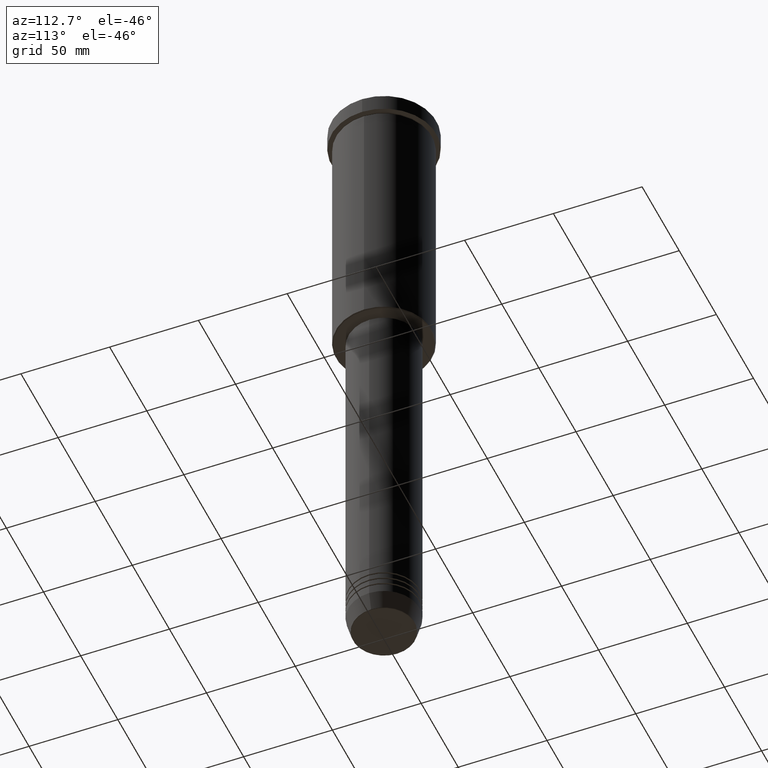
[diagram: clean part render]
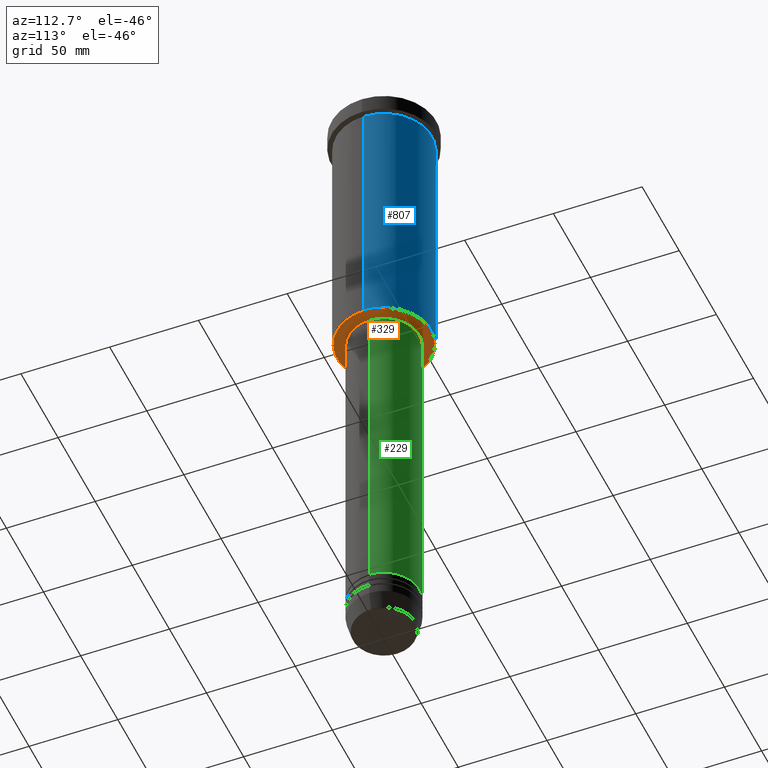
[diagram: same view with three faces highlighted in distinct colors, each labeled with its STEP entity id]
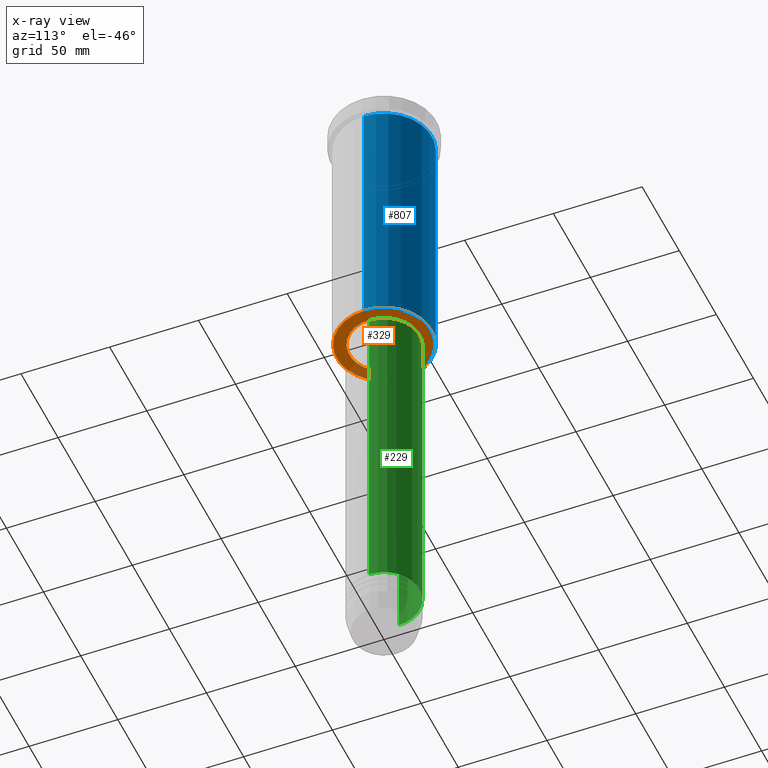
[diagram: x-ray of the same camera — body ghosted, the three highlighted faces saturated]
A machine part, auxiliary view with three faces highlighted in distinct colors.
The next image is the same camera in x-ray (body ghosted, the three faces saturated) — at least one of them is partly hidden behind the body in this view.
Their STEP definitions:

[orange] entity #329 — the highlighted planar face has unit normal (0, 0, -1).
#23 = CARTESIAN_POINT ( 'NONE',  ( 0.000000000000000000, 0.000000000000000000, -155.9999999999999716 ) ) ;
#35 = DIRECTION ( 'NONE',  ( -1.000000000000000000, 0.000000000000000000, 0.000000000000000000 ) ) ;
#80 = ORIENTED_EDGE ( 'NONE', *, *, #819, .T. ) ;
#95 = AXIS2_PLACEMENT_3D ( 'NONE', #314, #670, #936 ) ;
#111 = AXIS2_PLACEMENT_3D ( 'NONE', #23, #487, #754 ) ;
#124 = DIRECTION ( 'NONE',  ( 0.000000000000000000, 0.000000000000000000, -1.000000000000000000 ) ) ;
#139 = CARTESIAN_POINT ( 'NONE',  ( 0.000000000000000000, 0.000000000000000000, -155.9999999999999716 ) ) ;
#180 = DIRECTION ( 'NONE',  ( -1.000000000000000000, 0.000000000000000000, -0.000000000000000000 ) ) ;
#264 = PLANE ( 'NONE',  #382 ) ;
#269 = DIRECTION ( 'NONE',  ( 0.000000000000000000, 0.000000000000000000, -1.000000000000000000 ) ) ;
#314 = CARTESIAN_POINT ( 'NONE',  ( 0.000000000000000000, 0.000000000000000000, -155.9999999999999716 ) ) ;
#317 = VERTEX_POINT ( 'NONE', #686 ) ;
#329 = ADVANCED_FACE ( 'NONE', ( #357, #1177 ), #264, .T. ) ;
#331 = VERTEX_POINT ( 'NONE', #539 ) ;
#357 = FACE_OUTER_BOUND ( 'NONE', #416, .T. ) ;
#364 = AXIS2_PLACEMENT_3D ( 'NONE', #139, #744, #926 ) ;
#382 = AXIS2_PLACEMENT_3D ( 'NONE', #1074, #269, #180 ) ;
#416 = EDGE_LOOP ( 'NONE', ( #902, #988 ) ) ;
#424 = CIRCLE ( 'NONE', #364, 19.50000000000000000 ) ;
#487 = DIRECTION ( 'NONE',  ( 0.000000000000000000, 0.000000000000000000, -1.000000000000000000 ) ) ;
#537 = CARTESIAN_POINT ( 'NONE',  ( -19.50000000000000000, 2.388061258337338939E-15, -155.9999999999999716 ) ) ;
#539 = CARTESIAN_POINT ( 'NONE',  ( -26.50000000000002487, 3.275930187719171524E-15, -155.9999999999999716 ) ) ;
#550 = EDGE_CURVE ( 'NONE', #317, #666, #786, .T. ) ;
#617 = CIRCLE ( 'NONE', #111, 26.50000000000002487 ) ;
#638 = CARTESIAN_POINT ( 'NONE',  ( 26.50000000000002487, 0.000000000000000000, -155.9999999999999716 ) ) ;
#666 = VERTEX_POINT ( 'NONE', #537 ) ;
#670 = DIRECTION ( 'NONE',  ( -0.000000000000000000, -0.000000000000000000, 1.000000000000000000 ) ) ;
#677 = CARTESIAN_POINT ( 'NONE',  ( 0.000000000000000000, 0.000000000000000000, -155.9999999999999716 ) ) ;
#686 = CARTESIAN_POINT ( 'NONE',  ( 19.50000000000000000, 0.000000000000000000, -155.9999999999999716 ) ) ;
#744 = DIRECTION ( 'NONE',  ( -0.000000000000000000, -0.000000000000000000, 1.000000000000000000 ) ) ;
#750 = CIRCLE ( 'NONE', #900, 26.50000000000002487 ) ;
#754 = DIRECTION ( 'NONE',  ( -1.000000000000000000, 0.000000000000000000, 0.000000000000000000 ) ) ;
#767 = EDGE_LOOP ( 'NONE', ( #1125, #80 ) ) ;
#786 = CIRCLE ( 'NONE', #95, 19.50000000000000000 ) ;
#819 = EDGE_CURVE ( 'NONE', #666, #317, #424, .T. ) ;
#823 = EDGE_CURVE ( 'NONE', #331, #1147, #750, .T. ) ;
#844 = EDGE_CURVE ( 'NONE', #1147, #331, #617, .T. ) ;
#900 = AXIS2_PLACEMENT_3D ( 'NONE', #677, #124, #35 ) ;
#902 = ORIENTED_EDGE ( 'NONE', *, *, #844, .T. ) ;
#926 = DIRECTION ( 'NONE',  ( 1.000000000000000000, 0.000000000000000000, 0.000000000000000000 ) ) ;
#936 = DIRECTION ( 'NONE',  ( 1.000000000000000000, 0.000000000000000000, 0.000000000000000000 ) ) ;
#988 = ORIENTED_EDGE ( 'NONE', *, *, #823, .T. ) ;
#1074 = CARTESIAN_POINT ( 'NONE',  ( 0.000000000000000000, 27.00000000000000355, -155.9999999999999716 ) ) ;
#1125 = ORIENTED_EDGE ( 'NONE', *, *, #550, .T. ) ;
#1147 = VERTEX_POINT ( 'NONE', #638 ) ;
#1177 = FACE_BOUND ( 'NONE', #767, .T. ) ;

[blue] entity #807 — the highlighted cylindrical surface (partial cylindrical patch) has radius 27 mm, axis along (-0, -0, 1).
#102 = EDGE_CURVE ( 'NONE', #689, #730, #770, .T. ) ;
#122 = CARTESIAN_POINT ( 'NONE',  ( -27.00000000000000355, 3.306546357697854128E-15, 0.000000000000000000 ) ) ;
#127 = EDGE_CURVE ( 'NONE', #730, #387, #740, .T. ) ;
#162 = ORIENTED_EDGE ( 'NONE', *, *, #907, .F. ) ;
#248 = CARTESIAN_POINT ( 'NONE',  ( -27.00000000000000355, 3.306546357697854128E-15, -155.5000000000000000 ) ) ;
#306 = VECTOR ( 'NONE', #646, 1000.000000000000000 ) ;
#307 = CARTESIAN_POINT ( 'NONE',  ( 0.000000000000000000, 0.000000000000000000, 0.000000000000000000 ) ) ;
#326 = EDGE_LOOP ( 'NONE', ( #343, #586, #356, #162 ) ) ;
#343 = ORIENTED_EDGE ( 'NONE', *, *, #102, .T. ) ;
#356 = ORIENTED_EDGE ( 'NONE', *, *, #1091, .F. ) ;
#387 = VERTEX_POINT ( 'NONE', #457 ) ;
#390 = LINE ( 'NONE', #1109, #306 ) ;
#457 = CARTESIAN_POINT ( 'NONE',  ( -27.00000000000000355, 3.306546357697854128E-15, -10.99999999999999289 ) ) ;
#459 = CIRCLE ( 'NONE', #842, 27.00000000000000355 ) ;
#469 = DIRECTION ( 'NONE',  ( -1.000000000000000000, 0.000000000000000000, 0.000000000000000000 ) ) ;
#540 = VERTEX_POINT ( 'NONE', #1038 ) ;
#545 = DIRECTION ( 'NONE',  ( -0.000000000000000000, -0.000000000000000000, 1.000000000000000000 ) ) ;
#554 = CARTESIAN_POINT ( 'NONE',  ( 0.000000000000000000, 0.000000000000000000, -10.99999999999999289 ) ) ;
#586 = ORIENTED_EDGE ( 'NONE', *, *, #127, .T. ) ;
#644 = CARTESIAN_POINT ( 'NONE',  ( 0.000000000000000000, 0.000000000000000000, -155.5000000000000000 ) ) ;
#646 = DIRECTION ( 'NONE',  ( -0.000000000000000000, -0.000000000000000000, 1.000000000000000000 ) ) ;
#649 = VECTOR ( 'NONE', #735, 1000.000000000000000 ) ;
#667 = FACE_OUTER_BOUND ( 'NONE', #326, .T. ) ;
#689 = VERTEX_POINT ( 'NONE', #690 ) ;
#690 = CARTESIAN_POINT ( 'NONE',  ( 27.00000000000000355, 0.000000000000000000, -155.5000000000000000 ) ) ;
#730 = VERTEX_POINT ( 'NONE', #248 ) ;
#735 = DIRECTION ( 'NONE',  ( -0.000000000000000000, -0.000000000000000000, 1.000000000000000000 ) ) ;
#740 = LINE ( 'NONE', #122, #649 ) ;
#747 = AXIS2_PLACEMENT_3D ( 'NONE', #644, #752, #469 ) ;
#752 = DIRECTION ( 'NONE',  ( -0.000000000000000000, -0.000000000000000000, 1.000000000000000000 ) ) ;
#770 = CIRCLE ( 'NONE', #747, 27.00000000000000355 ) ;
#789 = AXIS2_PLACEMENT_3D ( 'NONE', #307, #1130, #826 ) ;
#807 = ADVANCED_FACE ( 'NONE', ( #667 ), #830, .T. ) ;
#826 = DIRECTION ( 'NONE',  ( 1.000000000000000000, 0.000000000000000000, 0.000000000000000000 ) ) ;
#830 = CYLINDRICAL_SURFACE ( 'NONE', #789, 27.00000000000000355 ) ;
#842 = AXIS2_PLACEMENT_3D ( 'NONE', #554, #545, #978 ) ;
#907 = EDGE_CURVE ( 'NONE', #689, #540, #390, .T. ) ;
#978 = DIRECTION ( 'NONE',  ( 1.000000000000000000, 0.000000000000000000, 0.000000000000000000 ) ) ;
#1038 = CARTESIAN_POINT ( 'NONE',  ( 27.00000000000000355, 0.000000000000000000, -10.99999999999999289 ) ) ;
#1091 = EDGE_CURVE ( 'NONE', #540, #387, #459, .T. ) ;
#1109 = CARTESIAN_POINT ( 'NONE',  ( 27.00000000000000355, 0.000000000000000000, 0.000000000000000000 ) ) ;
#1130 = DIRECTION ( 'NONE',  ( -0.000000000000000000, -0.000000000000000000, 1.000000000000000000 ) ) ;

[green] entity #229 — the highlighted cylindrical surface (partial cylindrical patch) has radius 20 mm, axis along (-0, -0, 1).
#45 = EDGE_CURVE ( 'NONE', #916, #923, #76, .T. ) ;
#61 = LINE ( 'NONE', #509, #528 ) ;
#76 = CIRCLE ( 'NONE', #597, 19.99999999999999645 ) ;
#87 = LINE ( 'NONE', #814, #531 ) ;
#213 = CARTESIAN_POINT ( 'NONE',  ( 20.00000000000000000, 0.000000000000000000, -346.9999999999998863 ) ) ;
#229 = ADVANCED_FACE ( 'NONE', ( #449 ), #413, .T. ) ;
#236 = DIRECTION ( 'NONE',  ( 1.000000000000000000, 0.000000000000000000, 0.000000000000000000 ) ) ;
#256 = VERTEX_POINT ( 'NONE', #330 ) ;
#260 = ORIENTED_EDGE ( 'NONE', *, *, #45, .F. ) ;
#274 = DIRECTION ( 'NONE',  ( -0.000000000000000000, -0.000000000000000000, 1.000000000000000000 ) ) ;
#289 = EDGE_CURVE ( 'NONE', #256, #923, #61, .T. ) ;
#308 = ORIENTED_EDGE ( 'NONE', *, *, #289, .T. ) ;
#330 = CARTESIAN_POINT ( 'NONE',  ( -20.00000000000000000, 2.449293598294706513E-15, -346.9999999999998863 ) ) ;
#344 = AXIS2_PLACEMENT_3D ( 'NONE', #593, #417, #236 ) ;
#372 = DIRECTION ( 'NONE',  ( -0.000000000000000000, -0.000000000000000000, 1.000000000000000000 ) ) ;
#413 = CYLINDRICAL_SURFACE ( 'NONE', #490, 19.99999999999999645 ) ;
#417 = DIRECTION ( 'NONE',  ( -0.000000000000000000, -0.000000000000000000, 1.000000000000000000 ) ) ;
#449 = FACE_OUTER_BOUND ( 'NONE', #524, .T. ) ;
#490 = AXIS2_PLACEMENT_3D ( 'NONE', #594, #274, #798 ) ;
#509 = CARTESIAN_POINT ( 'NONE',  ( -19.99999999999999645, 2.449293598294706119E-15, 0.000000000000000000 ) ) ;
#524 = EDGE_LOOP ( 'NONE', ( #796, #308, #260, #856 ) ) ;
#528 = VECTOR ( 'NONE', #980, 1000.000000000000000 ) ;
#531 = VECTOR ( 'NONE', #372, 1000.000000000000000 ) ;
#533 = CARTESIAN_POINT ( 'NONE',  ( 0.000000000000000000, 0.000000000000000000, -156.9999999999999147 ) ) ;
#560 = EDGE_CURVE ( 'NONE', #908, #256, #749, .T. ) ;
#593 = CARTESIAN_POINT ( 'NONE',  ( 0.000000000000000000, 0.000000000000000000, -346.9999999999998863 ) ) ;
#594 = CARTESIAN_POINT ( 'NONE',  ( 0.000000000000000000, 0.000000000000000000, 0.000000000000000000 ) ) ;
#597 = AXIS2_PLACEMENT_3D ( 'NONE', #533, #801, #992 ) ;
#749 = CIRCLE ( 'NONE', #344, 20.00000000000000000 ) ;
#796 = ORIENTED_EDGE ( 'NONE', *, *, #560, .T. ) ;
#798 = DIRECTION ( 'NONE',  ( 1.000000000000000000, 0.000000000000000000, 0.000000000000000000 ) ) ;
#801 = DIRECTION ( 'NONE',  ( -0.000000000000000000, -0.000000000000000000, 1.000000000000000000 ) ) ;
#814 = CARTESIAN_POINT ( 'NONE',  ( 19.99999999999999645, 0.000000000000000000, 0.000000000000000000 ) ) ;
#856 = ORIENTED_EDGE ( 'NONE', *, *, #1040, .F. ) ;
#908 = VERTEX_POINT ( 'NONE', #213 ) ;
#916 = VERTEX_POINT ( 'NONE', #1154 ) ;
#923 = VERTEX_POINT ( 'NONE', #960 ) ;
#960 = CARTESIAN_POINT ( 'NONE',  ( -19.99999999999999645, 2.449293598294706119E-15, -156.9999999999999147 ) ) ;
#980 = DIRECTION ( 'NONE',  ( -0.000000000000000000, -0.000000000000000000, 1.000000000000000000 ) ) ;
#992 = DIRECTION ( 'NONE',  ( 1.000000000000000000, 0.000000000000000000, 0.000000000000000000 ) ) ;
#1040 = EDGE_CURVE ( 'NONE', #908, #916, #87, .T. ) ;
#1154 = CARTESIAN_POINT ( 'NONE',  ( 19.99999999999999645, 0.000000000000000000, -156.9999999999999147 ) ) ;